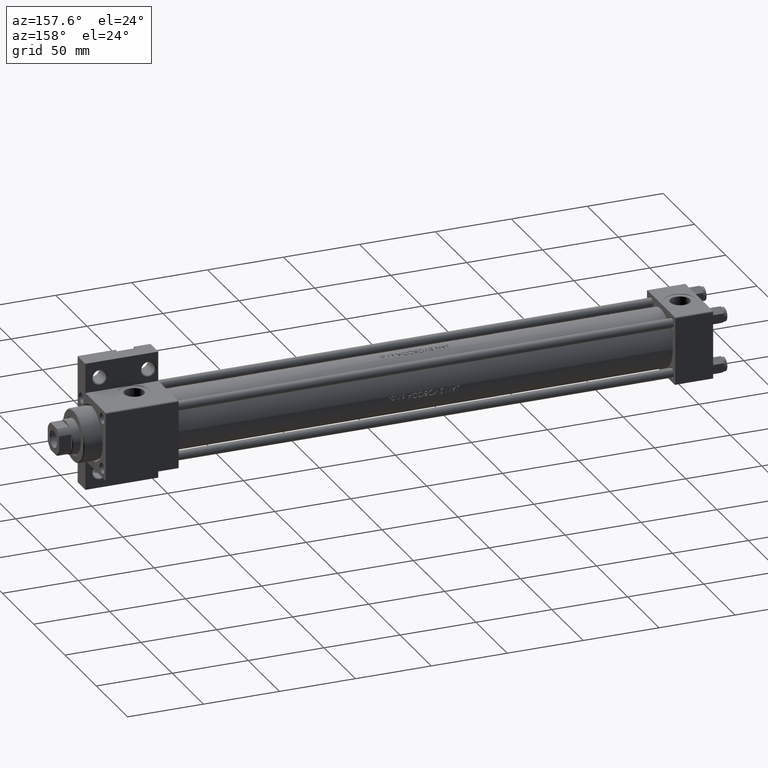
[diagram: clean part render]
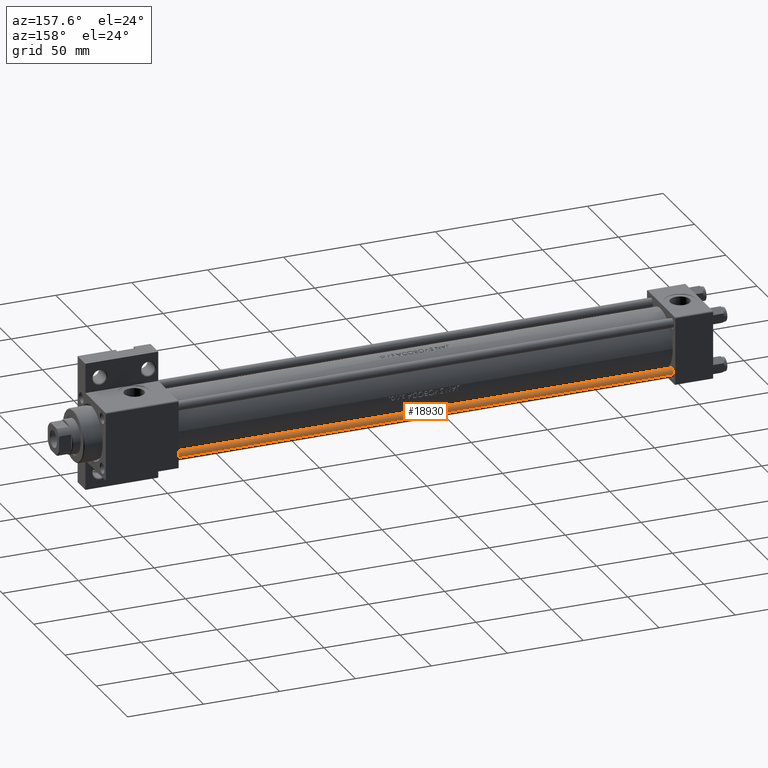
[diagram: same view with one face highlighted and labeled with its STEP entity id]
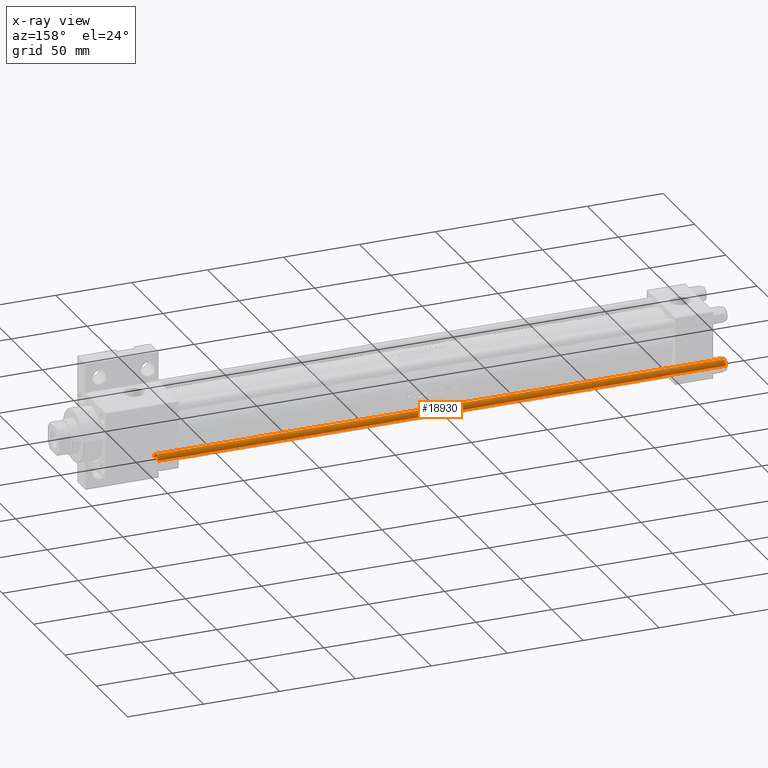
[diagram: x-ray of the same camera — body ghosted, the highlighted face saturated]
A machine part, auxiliary view. The second image highlights one B-rep face of the part: STEP entity #18930.
The next image is the same camera in x-ray: the body ghosted, the highlighted face saturated — about 0% of this face is hidden behind the body in this view.
In plain terms, the highlighted cylindrical surface (edge-blend (fillet) strip) has radius 3 mm, axis along (-1, -0, 0).
Its self-contained STEP definition (entity closure, byte-faithful):
#128 = EDGE_CURVE ( 'NONE', #28757, #26725, #28086, .T. ) ;
#1052 = ORIENTED_EDGE ( 'NONE', *, *, #128, .T. ) ;
#4079 = CARTESIAN_POINT ( 'NONE',  ( 0.000000000000000000, 0.000000000000000000, 375.0000000000000000 ) ) ;
#5890 = EDGE_LOOP ( 'NONE', ( #30683, #25834, #1052, #38412 ) ) ;
#7428 = CARTESIAN_POINT ( 'NONE',  ( -3.000000000000000444, 0.000000000000000000, 0.5000000000000559552 ) ) ;
#10211 = AXIS2_PLACEMENT_3D ( 'NONE', #4079, #30138, #23386 ) ;
#11663 = DIRECTION ( 'NONE',  ( -0.000000000000000000, -0.000000000000000000, -1.000000000000000000 ) ) ;
#12925 = DIRECTION ( 'NONE',  ( 1.000000000000000000, 0.000000000000000000, 0.000000000000000000 ) ) ;
#14170 = DIRECTION ( 'NONE',  ( 1.000000000000000000, 0.000000000000000000, 0.000000000000000000 ) ) ;
#14490 = EDGE_CURVE ( 'NONE', #17461, #28757, #26797, .T. ) ;
#14703 = EDGE_CURVE ( 'NONE', #47059, #26725, #26639, .T. ) ;
#17461 = VERTEX_POINT ( 'NONE', #31084 ) ;
#18930 = ADVANCED_FACE ( 'NONE', ( #40994 ), #45311, .T. ) ;
#23386 = DIRECTION ( 'NONE',  ( -1.000000000000000000, 0.000000000000000000, 0.000000000000000000 ) ) ;
#25247 = CARTESIAN_POINT ( 'NONE',  ( 3.000000000000000444, 3.673940397442060361E-16, 0.5000000000000559552 ) ) ;
#25741 = AXIS2_PLACEMENT_3D ( 'NONE', #43822, #39267, #14170 ) ;
#25834 = ORIENTED_EDGE ( 'NONE', *, *, #14490, .T. ) ;
#26639 = LINE ( 'NONE', #30481, #35474 ) ;
#26725 = VERTEX_POINT ( 'NONE', #7428 ) ;
#26797 = LINE ( 'NONE', #45338, #32412 ) ;
#26917 = EDGE_CURVE ( 'NONE', #47059, #17461, #35605, .T. ) ;
#28086 = CIRCLE ( 'NONE', #25741, 3.000000000000000444 ) ;
#28757 = VERTEX_POINT ( 'NONE', #25247 ) ;
#30138 = DIRECTION ( 'NONE',  ( -0.000000000000000000, -0.000000000000000000, -1.000000000000000000 ) ) ;
#30481 = CARTESIAN_POINT ( 'NONE',  ( -3.000000000000000444, 0.000000000000000000, 375.0000000000000000 ) ) ;
#30683 = ORIENTED_EDGE ( 'NONE', *, *, #26917, .T. ) ;
#31084 = CARTESIAN_POINT ( 'NONE',  ( 3.000000000000000444, 3.673940397442060361E-16, 374.5000000000000000 ) ) ;
#31744 = AXIS2_PLACEMENT_3D ( 'NONE', #35357, #45970, #12925 ) ;
#32412 = VECTOR ( 'NONE', #38112, 1000.000000000000000 ) ;
#35357 = CARTESIAN_POINT ( 'NONE',  ( 0.000000000000000000, 0.000000000000000000, 374.5000000000000000 ) ) ;
#35474 = VECTOR ( 'NONE', #11663, 1000.000000000000000 ) ;
#35605 = CIRCLE ( 'NONE', #31744, 3.000000000000000444 ) ;
#38112 = DIRECTION ( 'NONE',  ( -0.000000000000000000, -0.000000000000000000, -1.000000000000000000 ) ) ;
#38412 = ORIENTED_EDGE ( 'NONE', *, *, #14703, .F. ) ;
#39267 = DIRECTION ( 'NONE',  ( -0.000000000000000000, -0.000000000000000000, 1.000000000000000000 ) ) ;
#40994 = FACE_OUTER_BOUND ( 'NONE', #5890, .T. ) ;
#43822 = CARTESIAN_POINT ( 'NONE',  ( 0.000000000000000000, 0.000000000000000000, 0.5000000000000559552 ) ) ;
#45311 = CYLINDRICAL_SURFACE ( 'NONE', #10211, 3.000000000000000444 ) ;
#45338 = CARTESIAN_POINT ( 'NONE',  ( 3.000000000000000444, 3.673940397442060361E-16, 375.0000000000000000 ) ) ;
#45970 = DIRECTION ( 'NONE',  ( 0.000000000000000000, 0.000000000000000000, -1.000000000000000000 ) ) ;
#47059 = VERTEX_POINT ( 'NONE', #47726 ) ;
#47726 = CARTESIAN_POINT ( 'NONE',  ( -3.000000000000000444, 0.000000000000000000, 374.5000000000000000 ) ) ;